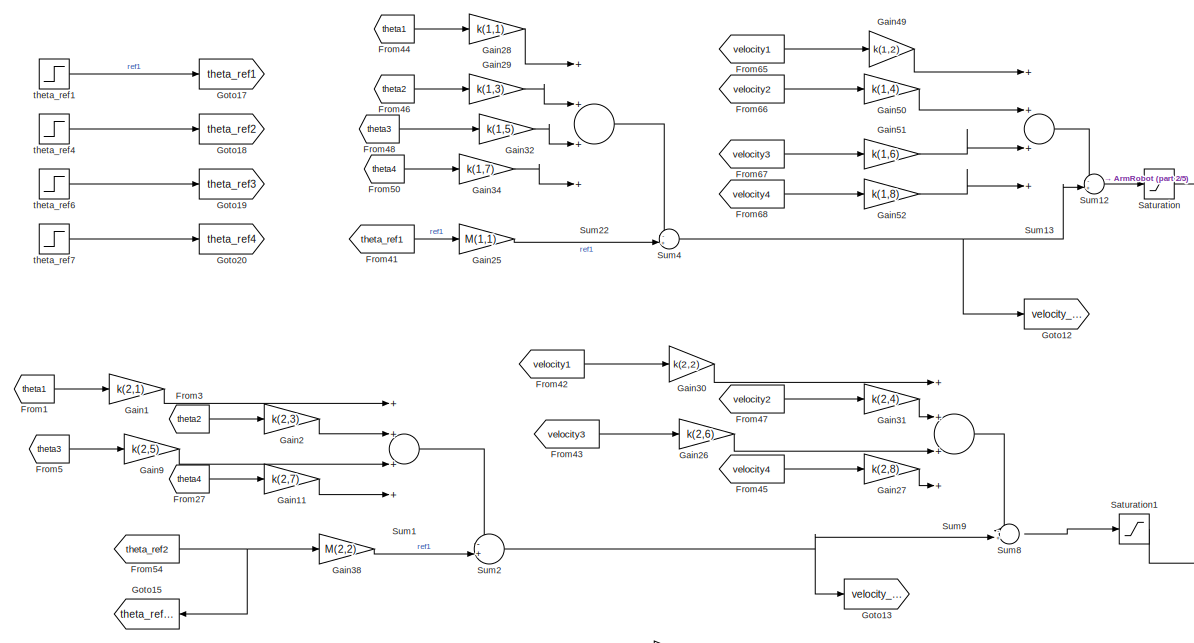
[diagram: root canvas - part 1/5, top left region]
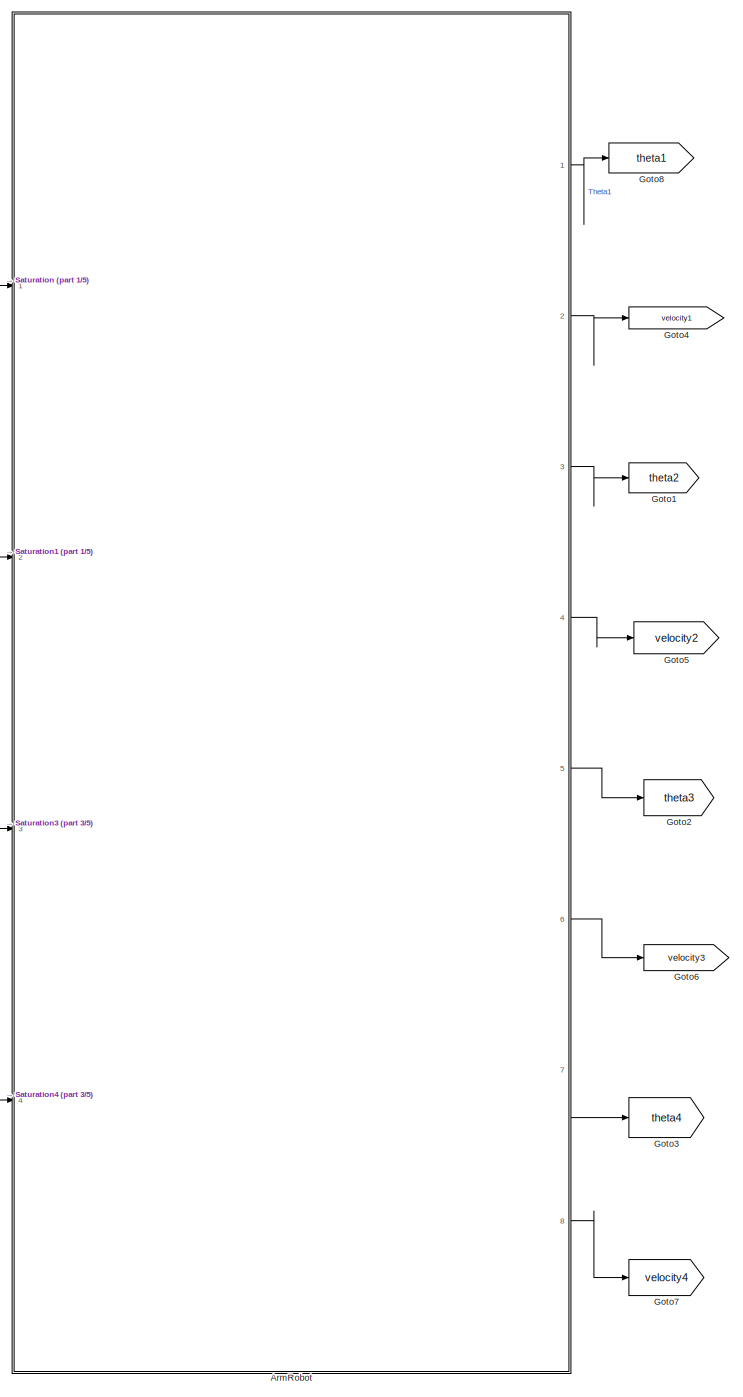
[diagram: root canvas - part 2/5, right side, full height]
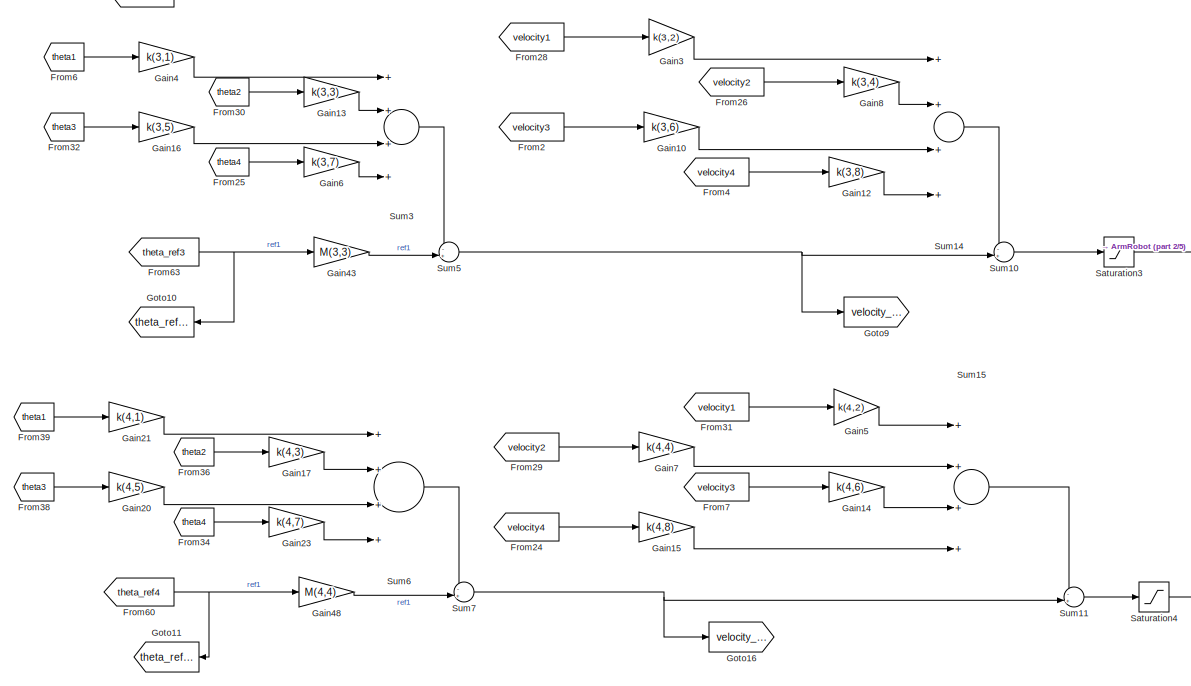
[diagram: root canvas - part 3/5, middle left region]
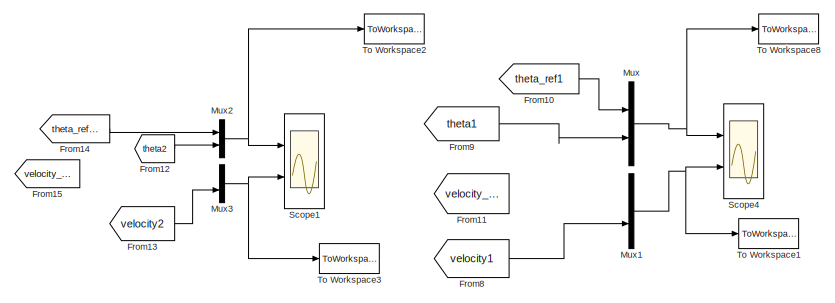
[diagram: root canvas - part 4/5, bottom right region]
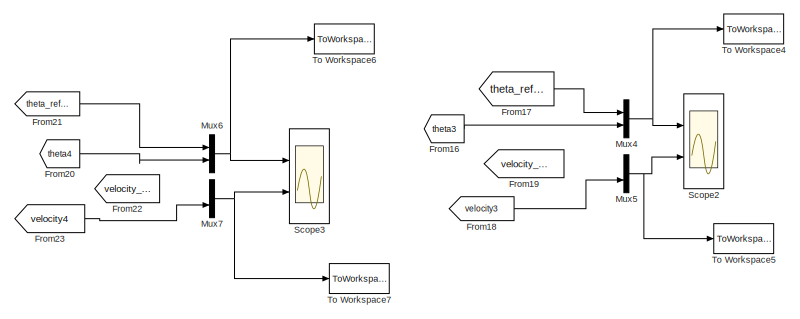
[diagram: root canvas - part 5/5, bottom center region]
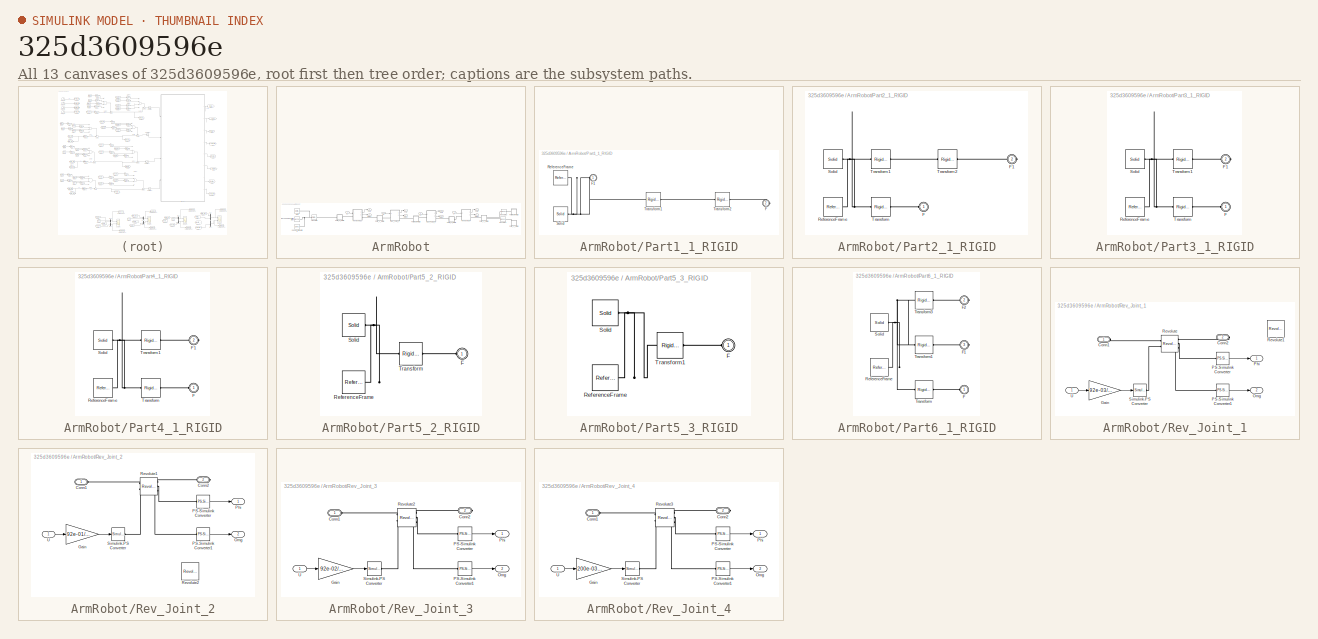
[diagram: thumbnail index - all 13 canvases of the model, root first then tree order]
MODEL slx_325d3609596e
KIND model
CONFIG AbsTol = auto
CONFIG FixedStep = 0.001
CONFIG MaxStep = auto
CONFIG MinStep = auto
CONFIG RelTol = 1e-3
CONFIG SampleTimeConstraint = Unconstrained
CONFIG Solver = FixedStepAuto
CONFIG SolverMode = Auto
CONFIG SolverName = FixedStepAuto
CONFIG StartTime = 0.0
CONFIG StopTime = 20
WORKSPACE source: external: MATLAB File  (data not in archive)
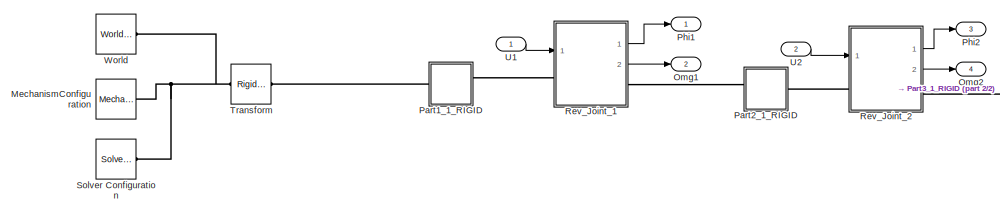
[diagram: ArmRobot - part 1/2, left side, full height]
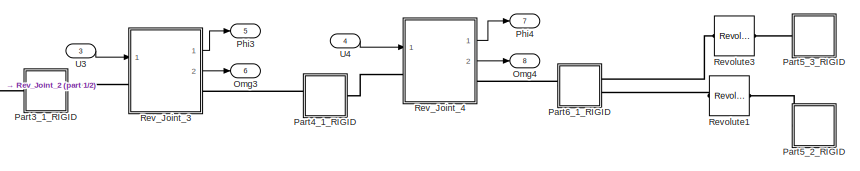
[diagram: ArmRobot - part 2/2, middle right region]
BLOCK [SubSystem] ArmRobot
  Ports = [4, 8]
  RequestExecContextInheritance = off
  Variant = off
BLOCK [Reference] ArmRobot/MechanismConfiguration  REF=sm_lib/Utilities/Mechanism
Configuration
  Ports = [0, 0, 0, 0, 0, 0, 1]
  SourceBlock = sm_lib/Utilities/Mechanism\nConfiguration
  SourceType = Mechanism\nConfiguration
BLOCK [Outport] ArmRobot/Omg1
  IconDisplay = Port number
  Port = 2
BLOCK [Outport] ArmRobot/Omg2
  IconDisplay = Port number
  Port = 4
BLOCK [Outport] ArmRobot/Omg3
  IconDisplay = Port number
  Port = 6
BLOCK [Outport] ArmRobot/Omg4
  IconDisplay = Port number
  Port = 8
BLOCK [SubSystem] ArmRobot/Part1_1_RIGID
  Ports = [0, 0, 0, 0, 0, 1, 1]
  RequestExecContextInheritance = off
  Variant = off
BLOCK [PMIOPort] ArmRobot/Part1_1_RIGID/F
  Port = 2
  Side = Right
BLOCK [PMIOPort] ArmRobot/Part1_1_RIGID/F1
  Port = 1
  Side = Left
BLOCK [Reference] ArmRobot/Part1_1_RIGID/ReferenceFrame  REF=sm_lib/Frames and
Transforms/Reference
Frame
  Ports = [0, 0, 0, 0, 0, 0, 1]
  SourceBlock = sm_lib/Frames and\nTransforms/Reference\nFrame
  SourceType = Reference\nFrame
BLOCK [Reference] ArmRobot/Part1_1_RIGID/Solid  REF=sm_lib/Body Elements/Solid
  Ports = [0, 0, 0, 0, 0, 0, 1]
  SourceBlock = sm_lib/Body Elements/Solid
  SourceType = Solid
BLOCK [Reference] ArmRobot/Part1_1_RIGID/Transform1  REF=sm_lib/Frames and
Transforms/Rigid
Transform
  Ports = [0, 0, 0, 0, 0, 1, 1]
  SourceBlock = sm_lib/Frames and\nTransforms/Rigid\nTransform
  SourceType = Rigid\nTransform
BLOCK [Reference] ArmRobot/Part1_1_RIGID/Transform2  REF=sm_lib/Frames and
Transforms/Rigid
Transform
  Ports = [0, 0, 0, 0, 0, 1, 1]
  SourceBlock = sm_lib/Frames and\nTransforms/Rigid\nTransform
  SourceType = Rigid\nTransform
BLOCK [SubSystem] ArmRobot/Part2_1_RIGID
  Ports = [0, 0, 0, 0, 0, 1, 1]
  RequestExecContextInheritance = off
  Variant = off
BLOCK [PMIOPort] ArmRobot/Part2_1_RIGID/F
  Port = 1
  Side = Left
BLOCK [PMIOPort] ArmRobot/Part2_1_RIGID/F1
  Port = 2
  Side = Right
BLOCK [Reference] ArmRobot/Part2_1_RIGID/ReferenceFrame  REF=sm_lib/Frames and
Transforms/Reference
Frame
  Ports = [0, 0, 0, 0, 0, 0, 1]
  SourceBlock = sm_lib/Frames and\nTransforms/Reference\nFrame
  SourceType = Reference\nFrame
BLOCK [Reference] ArmRobot/Part2_1_RIGID/Solid  REF=sm_lib/Body Elements/Solid
  Ports = [0, 0, 0, 0, 0, 0, 1]
  SourceBlock = sm_lib/Body Elements/Solid
  SourceType = Solid
BLOCK [Reference] ArmRobot/Part2_1_RIGID/Transform  REF=sm_lib/Frames and
Transforms/Rigid
Transform
  Ports = [0, 0, 0, 0, 0, 1, 1]
  SourceBlock = sm_lib/Frames and\nTransforms/Rigid\nTransform
  SourceType = Rigid\nTransform
BLOCK [Reference] ArmRobot/Part2_1_RIGID/Transform1  REF=sm_lib/Frames and
Transforms/Rigid
Transform
  Ports = [0, 0, 0, 0, 0, 1, 1]
  SourceBlock = sm_lib/Frames and\nTransforms/Rigid\nTransform
  SourceType = Rigid\nTransform
BLOCK [Reference] ArmRobot/Part2_1_RIGID/Transform2  REF=sm_lib/Frames and
Transforms/Rigid
Transform
  Ports = [0, 0, 0, 0, 0, 1, 1]
  SourceBlock = sm_lib/Frames and\nTransforms/Rigid\nTransform
  SourceType = Rigid\nTransform
BLOCK [SubSystem] ArmRobot/Part3_1_RIGID
  Ports = [0, 0, 0, 0, 0, 1, 1]
  RequestExecContextInheritance = off
  Variant = off
BLOCK [PMIOPort] ArmRobot/Part3_1_RIGID/F
  Port = 1
  Side = Left
BLOCK [PMIOPort] ArmRobot/Part3_1_RIGID/F1
  Port = 2
  Side = Right
BLOCK [Reference] ArmRobot/Part3_1_RIGID/ReferenceFrame  REF=sm_lib/Frames and
Transforms/Reference
Frame
  Ports = [0, 0, 0, 0, 0, 0, 1]
  SourceBlock = sm_lib/Frames and\nTransforms/Reference\nFrame
  SourceType = Reference\nFrame
BLOCK [Reference] ArmRobot/Part3_1_RIGID/Solid  REF=sm_lib/Body Elements/Solid
  Ports = [0, 0, 0, 0, 0, 0, 1]
  SourceBlock = sm_lib/Body Elements/Solid
  SourceType = Solid
BLOCK [Reference] ArmRobot/Part3_1_RIGID/Transform  REF=sm_lib/Frames and
Transforms/Rigid
Transform
  Ports = [0, 0, 0, 0, 0, 1, 1]
  SourceBlock = sm_lib/Frames and\nTransforms/Rigid\nTransform
  SourceType = Rigid\nTransform
BLOCK [Reference] ArmRobot/Part3_1_RIGID/Transform1  REF=sm_lib/Frames and
Transforms/Rigid
Transform
  Ports = [0, 0, 0, 0, 0, 1, 1]
  SourceBlock = sm_lib/Frames and\nTransforms/Rigid\nTransform
  SourceType = Rigid\nTransform
BLOCK [SubSystem] ArmRobot/Part4_1_RIGID
  Ports = [0, 0, 0, 0, 0, 1, 1]
  RequestExecContextInheritance = off
  Variant = off
BLOCK [PMIOPort] ArmRobot/Part4_1_RIGID/F
  Port = 1
  Side = Left
BLOCK [PMIOPort] ArmRobot/Part4_1_RIGID/F1
  Port = 2
  Side = Right
BLOCK [Reference] ArmRobot/Part4_1_RIGID/ReferenceFrame  REF=sm_lib/Frames and
Transforms/Reference
Frame
  Ports = [0, 0, 0, 0, 0, 0, 1]
  SourceBlock = sm_lib/Frames and\nTransforms/Reference\nFrame
  SourceType = Reference\nFrame
BLOCK [Reference] ArmRobot/Part4_1_RIGID/Solid  REF=sm_lib/Body Elements/Solid
  Ports = [0, 0, 0, 0, 0, 0, 1]
  SourceBlock = sm_lib/Body Elements/Solid
  SourceType = Solid
BLOCK [Reference] ArmRobot/Part4_1_RIGID/Transform  REF=sm_lib/Frames and
Transforms/Rigid
Transform
  Ports = [0, 0, 0, 0, 0, 1, 1]
  SourceBlock = sm_lib/Frames and\nTransforms/Rigid\nTransform
  SourceType = Rigid\nTransform
BLOCK [Reference] ArmRobot/Part4_1_RIGID/Transform1  REF=sm_lib/Frames and
Transforms/Rigid
Transform
  Ports = [0, 0, 0, 0, 0, 1, 1]
  SourceBlock = sm_lib/Frames and\nTransforms/Rigid\nTransform
  SourceType = Rigid\nTransform
BLOCK [SubSystem] ArmRobot/Part5_2_RIGID
  Ports = [0, 0, 0, 0, 0, 1]
  RequestExecContextInheritance = off
  Variant = off
BLOCK [PMIOPort] ArmRobot/Part5_2_RIGID/F
  Port = 1
  Side = Left
BLOCK [Reference] ArmRobot/Part5_2_RIGID/ReferenceFrame  REF=sm_lib/Frames and
Transforms/Reference
Frame
  Ports = [0, 0, 0, 0, 0, 0, 1]
  SourceBlock = sm_lib/Frames and\nTransforms/Reference\nFrame
  SourceType = Reference\nFrame
BLOCK [Reference] ArmRobot/Part5_2_RIGID/Solid  REF=sm_lib/Body Elements/Solid
  Ports = [0, 0, 0, 0, 0, 0, 1]
  SourceBlock = sm_lib/Body Elements/Solid
  SourceType = Solid
BLOCK [Reference] ArmRobot/Part5_2_RIGID/Transform  REF=sm_lib/Frames and
Transforms/Rigid
Transform
  Ports = [0, 0, 0, 0, 0, 1, 1]
  SourceBlock = sm_lib/Frames and\nTransforms/Rigid\nTransform
  SourceType = Rigid\nTransform
BLOCK [SubSystem] ArmRobot/Part5_3_RIGID
  Ports = [0, 0, 0, 0, 0, 1]
  RequestExecContextInheritance = off
  Variant = off
BLOCK [PMIOPort] ArmRobot/Part5_3_RIGID/F
  Port = 1
  Side = Left
BLOCK [Reference] ArmRobot/Part5_3_RIGID/ReferenceFrame  REF=sm_lib/Frames and
Transforms/Reference
Frame
  Ports = [0, 0, 0, 0, 0, 0, 1]
  SourceBlock = sm_lib/Frames and\nTransforms/Reference\nFrame
  SourceType = Reference\nFrame
BLOCK [Reference] ArmRobot/Part5_3_RIGID/Solid  REF=sm_lib/Body Elements/Solid
  Ports = [0, 0, 0, 0, 0, 0, 1]
  SourceBlock = sm_lib/Body Elements/Solid
  SourceType = Solid
BLOCK [Reference] ArmRobot/Part5_3_RIGID/Transform1  REF=sm_lib/Frames and
Transforms/Rigid
Transform
  Ports = [0, 0, 0, 0, 0, 1, 1]
  SourceBlock = sm_lib/Frames and\nTransforms/Rigid\nTransform
  SourceType = Rigid\nTransform
BLOCK [SubSystem] ArmRobot/Part6_1_RIGID
  Ports = [0, 0, 0, 0, 0, 1, 2]
  RequestExecContextInheritance = off
  Variant = off
BLOCK [PMIOPort] ArmRobot/Part6_1_RIGID/F
  Port = 1
  Side = Left
BLOCK [PMIOPort] ArmRobot/Part6_1_RIGID/F1
  Port = 3
  Side = Right
BLOCK [PMIOPort] ArmRobot/Part6_1_RIGID/F2
  Port = 2
  Side = Right
BLOCK [Reference] ArmRobot/Part6_1_RIGID/ReferenceFrame  REF=sm_lib/Frames and
Transforms/Reference
Frame
  Ports = [0, 0, 0, 0, 0, 0, 1]
  SourceBlock = sm_lib/Frames and\nTransforms/Reference\nFrame
  SourceType = Reference\nFrame
BLOCK [Reference] ArmRobot/Part6_1_RIGID/Solid  REF=sm_lib/Body Elements/Solid
  Ports = [0, 0, 0, 0, 0, 0, 1]
  SourceBlock = sm_lib/Body Elements/Solid
  SourceType = Solid
BLOCK [Reference] ArmRobot/Part6_1_RIGID/Transform  REF=sm_lib/Frames and
Transforms/Rigid
Transform
  Ports = [0, 0, 0, 0, 0, 1, 1]
  SourceBlock = sm_lib/Frames and\nTransforms/Rigid\nTransform
  SourceType = Rigid\nTransform
BLOCK [Reference] ArmRobot/Part6_1_RIGID/Transform1  REF=sm_lib/Frames and
Transforms/Rigid
Transform
  Ports = [0, 0, 0, 0, 0, 1, 1]
  SourceBlock = sm_lib/Frames and\nTransforms/Rigid\nTransform
  SourceType = Rigid\nTransform
BLOCK [Reference] ArmRobot/Part6_1_RIGID/Transform3  REF=sm_lib/Frames and
Transforms/Rigid
Transform
  Ports = [0, 0, 0, 0, 0, 1, 1]
  SourceBlock = sm_lib/Frames and\nTransforms/Rigid\nTransform
  SourceType = Rigid\nTransform
BLOCK [Outport] ArmRobot/Phi1
  IconDisplay = Port number
BLOCK [Outport] ArmRobot/Phi2
  IconDisplay = Port number
  Port = 3
BLOCK [Outport] ArmRobot/Phi3
  IconDisplay = Port number
  Port = 5
BLOCK [Outport] ArmRobot/Phi4
  IconDisplay = Port number
  Port = 7
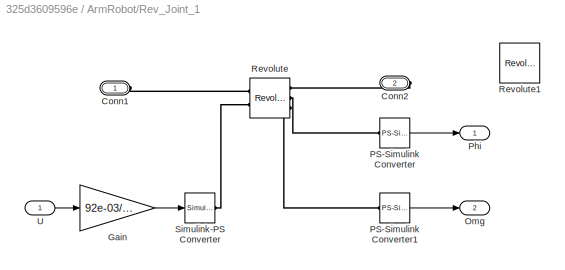
BLOCK [SubSystem] ArmRobot/Rev_Joint_1
  Ports = [1, 2, 0, 0, 0, 1, 1]
  RequestExecContextInheritance = off
  Variant = off
BLOCK [PMIOPort] ArmRobot/Rev_Joint_1/Conn1
  Port = 1
  Side = Left
BLOCK [PMIOPort] ArmRobot/Rev_Joint_1/Conn2
  Port = 2
  Side = Right
BLOCK [Gain] ArmRobot/Rev_Joint_1/Gain
  Gain = 92e-03/12
  OutDataTypeStr = Inherit: Inherit via internal rule
  ParamDataTypeStr = Inherit: Inherit via internal rule
  SaturateOnIntegerOverflow = off
BLOCK [Outport] ArmRobot/Rev_Joint_1/Omg
  IconDisplay = Port number
  Port = 2
BLOCK [Reference] ArmRobot/Rev_Joint_1/PS-Simulink Converter  REF=nesl_utility/PS-Simulink
Converter
  Ports = [0, 1, 0, 0, 0, 1]
  SourceBlock = nesl_utility/PS-Simulink\nConverter
  SourceType = PS-Simulink\nConverter
BLOCK [Reference] ArmRobot/Rev_Joint_1/PS-Simulink Converter1  REF=nesl_utility/PS-Simulink
Converter
  Ports = [0, 1, 0, 0, 0, 1]
  SourceBlock = nesl_utility/PS-Simulink\nConverter
  SourceType = PS-Simulink\nConverter
BLOCK [Outport] ArmRobot/Rev_Joint_1/Phi
  IconDisplay = Port number
BLOCK [Reference] ArmRobot/Rev_Joint_1/Revolute  REF=sm_lib/Joints/Revolute Joint
  Ports = [0, 0, 0, 0, 0, 2, 3]
  SourceBlock = sm_lib/Joints/Revolute Joint
  SourceType = Revolute Joint
BLOCK [Reference] ArmRobot/Rev_Joint_1/Revolute1  REF=sm_lib/Joints/Revolute Joint
  Commented = on
  Ports = [0, 0, 0, 0, 0, 2, 3]
  SourceBlock = sm_lib/Joints/Revolute Joint
  SourceType = Revolute Joint
BLOCK [Reference] ArmRobot/Rev_Joint_1/Simulink-PS Converter  REF=nesl_utility/Simulink-PS
Converter
  Ports = [1, 0, 0, 0, 0, 0, 1]
  SourceBlock = nesl_utility/Simulink-PS\nConverter
  SourceType = Simulink-PS\nConverter
BLOCK [Inport] ArmRobot/Rev_Joint_1/U
  IconDisplay = Port number
BLOCK [SubSystem] ArmRobot/Rev_Joint_2
  Ports = [1, 2, 0, 0, 0, 1, 1]
  RequestExecContextInheritance = off
  Variant = off
BLOCK [PMIOPort] ArmRobot/Rev_Joint_2/Conn1
  Port = 1
  Side = Left
BLOCK [PMIOPort] ArmRobot/Rev_Joint_2/Conn2
  Port = 2
  Side = Right
BLOCK [Gain] ArmRobot/Rev_Joint_2/Gain
  Gain = 92e-01/12
  OutDataTypeStr = Inherit: Inherit via internal rule
  ParamDataTypeStr = Inherit: Inherit via internal rule
  SaturateOnIntegerOverflow = off
BLOCK [Outport] ArmRobot/Rev_Joint_2/Omg
  IconDisplay = Port number
  Port = 2
BLOCK [Reference] ArmRobot/Rev_Joint_2/PS-Simulink Converter  REF=nesl_utility/PS-Simulink
Converter
  Ports = [0, 1, 0, 0, 0, 1]
  SourceBlock = nesl_utility/PS-Simulink\nConverter
  SourceType = PS-Simulink\nConverter
BLOCK [Reference] ArmRobot/Rev_Joint_2/PS-Simulink Converter1  REF=nesl_utility/PS-Simulink
Converter
  Ports = [0, 1, 0, 0, 0, 1]
  SourceBlock = nesl_utility/PS-Simulink\nConverter
  SourceType = PS-Simulink\nConverter
BLOCK [Outport] ArmRobot/Rev_Joint_2/Phi
  IconDisplay = Port number
BLOCK [Reference] ArmRobot/Rev_Joint_2/Revolute1  REF=sm_lib/Joints/Revolute Joint
  Ports = [0, 0, 0, 0, 0, 2, 3]
  SourceBlock = sm_lib/Joints/Revolute Joint
  SourceType = Revolute Joint
BLOCK [Reference] ArmRobot/Rev_Joint_2/Revolute2  REF=sm_lib/Joints/Revolute Joint
  Commented = on
  Ports = [0, 0, 0, 0, 0, 2, 3]
  SourceBlock = sm_lib/Joints/Revolute Joint
  SourceType = Revolute Joint
BLOCK [Reference] ArmRobot/Rev_Joint_2/Simulink-PS Converter  REF=nesl_utility/Simulink-PS
Converter
  Ports = [1, 0, 0, 0, 0, 0, 1]
  SourceBlock = nesl_utility/Simulink-PS\nConverter
  SourceType = Simulink-PS\nConverter
BLOCK [Inport] ArmRobot/Rev_Joint_2/U
  IconDisplay = Port number
BLOCK [SubSystem] ArmRobot/Rev_Joint_3
  Ports = [1, 2, 0, 0, 0, 1, 1]
  RequestExecContextInheritance = off
  Variant = off
BLOCK [PMIOPort] ArmRobot/Rev_Joint_3/Conn1
  Port = 1
  Side = Left
BLOCK [PMIOPort] ArmRobot/Rev_Joint_3/Conn2
  Port = 2
  Side = Right
BLOCK [Gain] ArmRobot/Rev_Joint_3/Gain
  Gain = 92e-02/12
  OutDataTypeStr = Inherit: Inherit via internal rule
  ParamDataTypeStr = Inherit: Inherit via internal rule
  SaturateOnIntegerOverflow = off
BLOCK [Outport] ArmRobot/Rev_Joint_3/Omg
  IconDisplay = Port number
  Port = 2
BLOCK [Reference] ArmRobot/Rev_Joint_3/PS-Simulink Converter  REF=nesl_utility/PS-Simulink
Converter
  Ports = [0, 1, 0, 0, 0, 1]
  SourceBlock = nesl_utility/PS-Simulink\nConverter
  SourceType = PS-Simulink\nConverter
BLOCK [Reference] ArmRobot/Rev_Joint_3/PS-Simulink Converter1  REF=nesl_utility/PS-Simulink
Converter
  Ports = [0, 1, 0, 0, 0, 1]
  SourceBlock = nesl_utility/PS-Simulink\nConverter
  SourceType = PS-Simulink\nConverter
BLOCK [Outport] ArmRobot/Rev_Joint_3/Phi
  IconDisplay = Port number
BLOCK [Reference] ArmRobot/Rev_Joint_3/Revolute2  REF=sm_lib/Joints/Revolute Joint
  Ports = [0, 0, 0, 0, 0, 2, 3]
  SourceBlock = sm_lib/Joints/Revolute Joint
  SourceType = Revolute Joint
BLOCK [Reference] ArmRobot/Rev_Joint_3/Simulink-PS Converter  REF=nesl_utility/Simulink-PS
Converter
  Ports = [1, 0, 0, 0, 0, 0, 1]
  SourceBlock = nesl_utility/Simulink-PS\nConverter
  SourceType = Simulink-PS\nConverter
BLOCK [Inport] ArmRobot/Rev_Joint_3/U
  IconDisplay = Port number
BLOCK [SubSystem] ArmRobot/Rev_Joint_4
  Ports = [1, 2, 0, 0, 0, 1, 1]
  RequestExecContextInheritance = off
  Variant = off
BLOCK [PMIOPort] ArmRobot/Rev_Joint_4/Conn1
  Port = 1
  Side = Left
BLOCK [PMIOPort] ArmRobot/Rev_Joint_4/Conn2
  Port = 2
  Side = Right
BLOCK [Gain] ArmRobot/Rev_Joint_4/Gain
  Gain = 200e-03/12
  OutDataTypeStr = Inherit: Inherit via internal rule
  ParamDataTypeStr = Inherit: Inherit via internal rule
  SaturateOnIntegerOverflow = off
BLOCK [Outport] ArmRobot/Rev_Joint_4/Omg
  IconDisplay = Port number
  Port = 2
BLOCK [Reference] ArmRobot/Rev_Joint_4/PS-Simulink Converter  REF=nesl_utility/PS-Simulink
Converter
  Ports = [0, 1, 0, 0, 0, 1]
  SourceBlock = nesl_utility/PS-Simulink\nConverter
  SourceType = PS-Simulink\nConverter
BLOCK [Reference] ArmRobot/Rev_Joint_4/PS-Simulink Converter1  REF=nesl_utility/PS-Simulink
Converter
  Ports = [0, 1, 0, 0, 0, 1]
  SourceBlock = nesl_utility/PS-Simulink\nConverter
  SourceType = PS-Simulink\nConverter
BLOCK [Outport] ArmRobot/Rev_Joint_4/Phi
  IconDisplay = Port number
BLOCK [Reference] ArmRobot/Rev_Joint_4/Revolute3  REF=sm_lib/Joints/Revolute Joint
  Ports = [0, 0, 0, 0, 0, 2, 3]
  SourceBlock = sm_lib/Joints/Revolute Joint
  SourceType = Revolute Joint
BLOCK [Reference] ArmRobot/Rev_Joint_4/Simulink-PS Converter  REF=nesl_utility/Simulink-PS
Converter
  Ports = [1, 0, 0, 0, 0, 0, 1]
  SourceBlock = nesl_utility/Simulink-PS\nConverter
  SourceType = Simulink-PS\nConverter
BLOCK [Inport] ArmRobot/Rev_Joint_4/U
  IconDisplay = Port number
BLOCK [Reference] ArmRobot/Revolute1  REF=sm_lib/Joints/Revolute Joint
  Ports = [0, 0, 0, 0, 0, 1, 1]
  SourceBlock = sm_lib/Joints/Revolute Joint
  SourceType = Revolute Joint
BLOCK [Reference] ArmRobot/Revolute3  REF=sm_lib/Joints/Revolute Joint
  Ports = [0, 0, 0, 0, 0, 1, 1]
  SourceBlock = sm_lib/Joints/Revolute Joint
  SourceType = Revolute Joint
BLOCK [Reference] ArmRobot/Solver Configuration  REF=nesl_utility/Solver
Configuration
  Ports = [0, 0, 0, 0, 0, 0, 1]
  SourceBlock = nesl_utility/Solver\nConfiguration
  SourceType = Solver\nConfiguration
BLOCK [Reference] ArmRobot/Transform  REF=sm_lib/Frames and
Transforms/Rigid
Transform
  Ports = [0, 0, 0, 0, 0, 1, 1]
  SourceBlock = sm_lib/Frames and\nTransforms/Rigid\nTransform
  SourceType = Rigid\nTransform
BLOCK [Inport] ArmRobot/U1
  IconDisplay = Port number
BLOCK [Inport] ArmRobot/U2
  IconDisplay = Port number
  Port = 2
BLOCK [Inport] ArmRobot/U3
  IconDisplay = Port number
  Port = 3
BLOCK [Inport] ArmRobot/U4
  IconDisplay = Port number
  Port = 4
BLOCK [Reference] ArmRobot/World  REF=sm_lib/Frames and
Transforms/World Frame
  Ports = [0, 0, 0, 0, 0, 0, 1]
  SourceBlock = sm_lib/Frames and\nTransforms/World Frame
  SourceType = World Frame
BLOCK [From] From1
  GotoTag = theta1
BLOCK [From] From10
  GotoTag = theta_ref1
BLOCK [From] From11
  GotoTag = velocity_ref1
BLOCK [From] From12
  GotoTag = theta2
BLOCK [From] From13
  GotoTag = velocity2
BLOCK [From] From14
  GotoTag = theta_ref_2
BLOCK [From] From15
  GotoTag = velocity_ref2
BLOCK [From] From16
  GotoTag = theta3
BLOCK [From] From17
  GotoTag = theta_ref_3
BLOCK [From] From18
  GotoTag = velocity3
BLOCK [From] From19
  GotoTag = velocity_ref3
BLOCK [From] From2
  GotoTag = velocity3
BLOCK [From] From20
  GotoTag = theta4
BLOCK [From] From21
  GotoTag = theta_ref_4
BLOCK [From] From22
  GotoTag = velocity_ref4
BLOCK [From] From23
  GotoTag = velocity4
BLOCK [From] From24
  GotoTag = velocity4
BLOCK [From] From25
  GotoTag = theta4
BLOCK [From] From26
  GotoTag = velocity2
BLOCK [From] From27
  GotoTag = theta4
BLOCK [From] From28
  GotoTag = velocity1
BLOCK [From] From29
  GotoTag = velocity2
BLOCK [From] From3
  GotoTag = theta2
BLOCK [From] From30
  GotoTag = theta2
BLOCK [From] From31
  GotoTag = velocity1
BLOCK [From] From32
  GotoTag = theta3
BLOCK [From] From34
  GotoTag = theta4
BLOCK [From] From36
  GotoTag = theta2
BLOCK [From] From38
  GotoTag = theta3
BLOCK [From] From39
  GotoTag = theta1
BLOCK [From] From4
  GotoTag = velocity4
BLOCK [From] From41
  GotoTag = theta_ref1
BLOCK [From] From42
  GotoTag = velocity1
BLOCK [From] From43
  GotoTag = velocity3
BLOCK [From] From44
  GotoTag = theta1
BLOCK [From] From45
  GotoTag = velocity4
BLOCK [From] From46
  GotoTag = theta2
BLOCK [From] From47
  GotoTag = velocity2
BLOCK [From] From48
  GotoTag = theta3
BLOCK [From] From5
  GotoTag = theta3
BLOCK [From] From50
  GotoTag = theta4
BLOCK [From] From54
  GotoTag = theta_ref2
BLOCK [From] From6
  GotoTag = theta1
BLOCK [From] From60
  GotoTag = theta_ref4
BLOCK [From] From63
  GotoTag = theta_ref3
BLOCK [From] From65
  GotoTag = velocity1
BLOCK [From] From66
  GotoTag = velocity2
BLOCK [From] From67
  GotoTag = velocity3
BLOCK [From] From68
  GotoTag = velocity4
BLOCK [From] From7
  GotoTag = velocity3
BLOCK [From] From8
  GotoTag = velocity1
BLOCK [From] From9
  GotoTag = theta1
BLOCK [Gain] Gain1
  Gain = k(2,1)
  OutDataTypeStr = Inherit: Inherit via internal rule
  ParamDataTypeStr = Inherit: Inherit via internal rule
  SaturateOnIntegerOverflow = off
BLOCK [Gain] Gain10
  Gain = k(3,6)
  OutDataTypeStr = Inherit: Inherit via internal rule
  ParamDataTypeStr = Inherit: Inherit via internal rule
  SaturateOnIntegerOverflow = off
BLOCK [Gain] Gain11
  Gain = k(2,7)
  OutDataTypeStr = Inherit: Inherit via internal rule
  ParamDataTypeStr = Inherit: Inherit via internal rule
  SaturateOnIntegerOverflow = off
BLOCK [Gain] Gain12
  Gain = k(3,8)
  OutDataTypeStr = Inherit: Inherit via internal rule
  ParamDataTypeStr = Inherit: Inherit via internal rule
  SaturateOnIntegerOverflow = off
BLOCK [Gain] Gain13
  Gain = k(3,3)
  OutDataTypeStr = Inherit: Inherit via internal rule
  ParamDataTypeStr = Inherit: Inherit via internal rule
  SaturateOnIntegerOverflow = off
BLOCK [Gain] Gain14
  Gain = k(4,6)
  OutDataTypeStr = Inherit: Inherit via internal rule
  ParamDataTypeStr = Inherit: Inherit via internal rule
  SaturateOnIntegerOverflow = off
BLOCK [Gain] Gain15
  Gain = k(4,8)
  OutDataTypeStr = Inherit: Inherit via internal rule
  ParamDataTypeStr = Inherit: Inherit via internal rule
  SaturateOnIntegerOverflow = off
BLOCK [Gain] Gain16
  Gain = k(3,5)
  OutDataTypeStr = Inherit: Inherit via internal rule
  ParamDataTypeStr = Inherit: Inherit via internal rule
  SaturateOnIntegerOverflow = off
BLOCK [Gain] Gain17
  Gain = k(4,3)
  OutDataTypeStr = Inherit: Inherit via internal rule
  ParamDataTypeStr = Inherit: Inherit via internal rule
  SaturateOnIntegerOverflow = off
BLOCK [Gain] Gain2
  Gain = k(2,3)
  OutDataTypeStr = Inherit: Inherit via internal rule
  ParamDataTypeStr = Inherit: Inherit via internal rule
  SaturateOnIntegerOverflow = off
BLOCK [Gain] Gain20
  Gain = k(4,5)
  OutDataTypeStr = Inherit: Inherit via internal rule
  ParamDataTypeStr = Inherit: Inherit via internal rule
  SaturateOnIntegerOverflow = off
BLOCK [Gain] Gain21
  Gain = k(4,1)
  OutDataTypeStr = Inherit: Inherit via internal rule
  ParamDataTypeStr = Inherit: Inherit via internal rule
  SaturateOnIntegerOverflow = off
BLOCK [Gain] Gain23
  Gain = k(4,7)
  OutDataTypeStr = Inherit: Inherit via internal rule
  ParamDataTypeStr = Inherit: Inherit via internal rule
  SaturateOnIntegerOverflow = off
BLOCK [Gain] Gain25
  Gain = M(1,1)
  OutDataTypeStr = Inherit: Inherit via internal rule
  ParamDataTypeStr = Inherit: Inherit via internal rule
  SaturateOnIntegerOverflow = off
BLOCK [Gain] Gain26
  Gain = k(2,6)
  OutDataTypeStr = Inherit: Inherit via internal rule
  ParamDataTypeStr = Inherit: Inherit via internal rule
  SaturateOnIntegerOverflow = off
BLOCK [Gain] Gain27
  Gain = k(2,8)
  OutDataTypeStr = Inherit: Inherit via internal rule
  ParamDataTypeStr = Inherit: Inherit via internal rule
  SaturateOnIntegerOverflow = off
BLOCK [Gain] Gain28
  Gain = k(1,1)
  OutDataTypeStr = Inherit: Inherit via internal rule
  ParamDataTypeStr = Inherit: Inherit via internal rule
  SaturateOnIntegerOverflow = off
BLOCK [Gain] Gain29
  Gain = k(1,3)
  OutDataTypeStr = Inherit: Inherit via internal rule
  ParamDataTypeStr = Inherit: Inherit via internal rule
  SaturateOnIntegerOverflow = off
BLOCK [Gain] Gain3
  Gain = k(3,2)
  OutDataTypeStr = Inherit: Inherit via internal rule
  ParamDataTypeStr = Inherit: Inherit via internal rule
  SaturateOnIntegerOverflow = off
BLOCK [Gain] Gain30
  Gain = k(2,2)
  OutDataTypeStr = Inherit: Inherit via internal rule
  ParamDataTypeStr = Inherit: Inherit via internal rule
  SaturateOnIntegerOverflow = off
BLOCK [Gain] Gain31
  Gain = k(2,4)
  OutDataTypeStr = Inherit: Inherit via internal rule
  ParamDataTypeStr = Inherit: Inherit via internal rule
  SaturateOnIntegerOverflow = off
BLOCK [Gain] Gain32
  Gain = k(1,5)
  OutDataTypeStr = Inherit: Inherit via internal rule
  ParamDataTypeStr = Inherit: Inherit via internal rule
  SaturateOnIntegerOverflow = off
BLOCK [Gain] Gain34
  Gain = k(1,7)
  OutDataTypeStr = Inherit: Inherit via internal rule
  ParamDataTypeStr = Inherit: Inherit via internal rule
  SaturateOnIntegerOverflow = off
BLOCK [Gain] Gain38
  Gain = M(2,2)
  OutDataTypeStr = Inherit: Inherit via internal rule
  ParamDataTypeStr = Inherit: Inherit via internal rule
  SaturateOnIntegerOverflow = off
BLOCK [Gain] Gain4
  Gain = k(3,1)
  OutDataTypeStr = Inherit: Inherit via internal rule
  ParamDataTypeStr = Inherit: Inherit via internal rule
  SaturateOnIntegerOverflow = off
BLOCK [Gain] Gain43
  Gain = M(3,3)
  OutDataTypeStr = Inherit: Inherit via internal rule
  ParamDataTypeStr = Inherit: Inherit via internal rule
  SaturateOnIntegerOverflow = off
BLOCK [Gain] Gain48
  Gain = M(4,4)
  OutDataTypeStr = Inherit: Inherit via internal rule
  ParamDataTypeStr = Inherit: Inherit via internal rule
  SaturateOnIntegerOverflow = off
BLOCK [Gain] Gain49
  Gain = k(1,2)
  OutDataTypeStr = Inherit: Inherit via internal rule
  ParamDataTypeStr = Inherit: Inherit via internal rule
  SaturateOnIntegerOverflow = off
BLOCK [Gain] Gain5
  Gain = k(4,2)
  OutDataTypeStr = Inherit: Inherit via internal rule
  ParamDataTypeStr = Inherit: Inherit via internal rule
  SaturateOnIntegerOverflow = off
BLOCK [Gain] Gain50
  Gain = k(1,4)
  OutDataTypeStr = Inherit: Inherit via internal rule
  ParamDataTypeStr = Inherit: Inherit via internal rule
  SaturateOnIntegerOverflow = off
BLOCK [Gain] Gain51
  Gain = k(1,6)
  OutDataTypeStr = Inherit: Inherit via internal rule
  ParamDataTypeStr = Inherit: Inherit via internal rule
  SaturateOnIntegerOverflow = off
BLOCK [Gain] Gain52
  Gain = k(1,8)
  OutDataTypeStr = Inherit: Inherit via internal rule
  ParamDataTypeStr = Inherit: Inherit via internal rule
  SaturateOnIntegerOverflow = off
BLOCK [Gain] Gain6
  Gain = k(3,7)
  OutDataTypeStr = Inherit: Inherit via internal rule
  ParamDataTypeStr = Inherit: Inherit via internal rule
  SaturateOnIntegerOverflow = off
BLOCK [Gain] Gain7
  Gain = k(4,4)
  OutDataTypeStr = Inherit: Inherit via internal rule
  ParamDataTypeStr = Inherit: Inherit via internal rule
  SaturateOnIntegerOverflow = off
BLOCK [Gain] Gain8
  Gain = k(3,4)
  OutDataTypeStr = Inherit: Inherit via internal rule
  ParamDataTypeStr = Inherit: Inherit via internal rule
  SaturateOnIntegerOverflow = off
BLOCK [Gain] Gain9
  Gain = k(2,5)
  OutDataTypeStr = Inherit: Inherit via internal rule
  ParamDataTypeStr = Inherit: Inherit via internal rule
  SaturateOnIntegerOverflow = off
BLOCK [Goto] Goto1
  GotoTag = theta2
BLOCK [Goto] Goto10
  GotoTag = theta_ref_3
BLOCK [Goto] Goto11
  GotoTag = theta_ref_4
BLOCK [Goto] Goto12
  GotoTag = velocity_ref1
BLOCK [Goto] Goto13
  GotoTag = velocity_ref2
BLOCK [Goto] Goto15
  GotoTag = theta_ref_2
BLOCK [Goto] Goto16
  GotoTag = velocity_ref4
BLOCK [Goto] Goto17
  GotoTag = theta_ref1
BLOCK [Goto] Goto18
  GotoTag = theta_ref2
BLOCK [Goto] Goto19
  GotoTag = theta_ref3
BLOCK [Goto] Goto2
  GotoTag = theta3
BLOCK [Goto] Goto20
  GotoTag = theta_ref4
BLOCK [Goto] Goto3
  GotoTag = theta4
BLOCK [Goto] Goto4
  GotoTag = velocity1
BLOCK [Goto] Goto5
  GotoTag = velocity2
BLOCK [Goto] Goto6
  GotoTag = velocity3
BLOCK [Goto] Goto7
  GotoTag = velocity4
BLOCK [Goto] Goto8
  GotoTag = theta1
BLOCK [Goto] Goto9
  GotoTag = velocity_ref3
BLOCK [Mux] Mux
  DisplayOption = bar
  Inputs = 2
  Ports = [2, 1]
BLOCK [Mux] Mux1
  DisplayOption = bar
  Inputs = 2
  Ports = [2, 1]
BLOCK [Mux] Mux2
  DisplayOption = bar
  Inputs = 2
  Ports = [2, 1]
BLOCK [Mux] Mux3
  DisplayOption = bar
  Inputs = 2
  Ports = [2, 1]
BLOCK [Mux] Mux4
  DisplayOption = bar
  Inputs = 2
  Ports = [2, 1]
BLOCK [Mux] Mux5
  DisplayOption = bar
  Inputs = 2
  Ports = [2, 1]
BLOCK [Mux] Mux6
  DisplayOption = bar
  Inputs = 2
  Ports = [2, 1]
BLOCK [Mux] Mux7
  DisplayOption = bar
  Inputs = 2
  Ports = [2, 1]
BLOCK [Saturate] Saturation
  InputPortMap = u0
  LowerLimit = -12
  Ports = [1, 1]
  UpperLimit = 12
BLOCK [Saturate] Saturation1
  InputPortMap = u0
  LowerLimit = -12
  Ports = [1, 1]
  UpperLimit = 12
BLOCK [Saturate] Saturation3
  InputPortMap = u0
  LowerLimit = -12
  Ports = [1, 1]
  UpperLimit = 12
BLOCK [Saturate] Saturation4
  InputPortMap = u0
  LowerLimit = -12
  Ports = [1, 1]
  UpperLimit = 12
BLOCK [Scope] Scope1
  NumInputPorts = 2
  Ports = [2]
  ScopeSpecificationString = Simulink.scopes.TimeScopeBlockCfg('CurrentConfiguration', extmgr.ConfigurationSet(extmgr.Configuration('Core','General UI',true),extmgr.Configuration('Core','Source UI',true),extmgr.Configuration('Sources','WiredSimulink',true,'DataLoggingVariableName','ScopeData1'),extmgr.Configuration('Visuals','Time Domain',true,'SerializedDisplays',{struct('MinYLimReal','-0.19765','MaxYLimReal','1.76729','YLab...<+2110ch>
BLOCK [Scope] Scope2
  NumInputPorts = 2
  Ports = [2]
  ScopeSpecificationString = Simulink.scopes.TimeScopeBlockCfg('CurrentConfiguration', extmgr.ConfigurationSet(extmgr.Configuration('Core','General UI',true),extmgr.Configuration('Core','Source UI',true),extmgr.Configuration('Sources','WiredSimulink',true,'DataLoggingVariableName','ScopeData2'),extmgr.Configuration('Visuals','Time Domain',true,'SerializedDisplays',{struct('MinYLimReal','-0.20227','MaxYLimReal','1.82039','YLab...<+2107ch>
BLOCK [Scope] Scope3
  NumInputPorts = 2
  Ports = [2]
  ScopeSpecificationString = Simulink.scopes.TimeScopeBlockCfg('CurrentConfiguration', extmgr.ConfigurationSet(extmgr.Configuration('Core','General UI',true),extmgr.Configuration('Core','Source UI',true),extmgr.Configuration('Sources','WiredSimulink',true,'DataLoggingVariableName','ScopeData3'),extmgr.Configuration('Visuals','Time Domain',true,'SerializedDisplays',{struct('MinYLimReal','-0.3927','MaxYLimReal','3.53429','YLabe...<+2105ch>
BLOCK [Scope] Scope4
  NumInputPorts = 2
  Ports = [2]
  ScopeSpecificationString = Simulink.scopes.TimeScopeBlockCfg('CurrentConfiguration', extmgr.ConfigurationSet(extmgr.Configuration('Core','General UI',true),extmgr.Configuration('Core','Source UI',true),extmgr.Configuration('Sources','WiredSimulink',true,'DataLoggingVariableName','ScopeData1'),extmgr.Configuration('Visuals','Time Domain',true,'SerializedDisplays',{struct('MinYLimReal','-0.19635','MaxYLimReal','1.76715','YLab...<+2104ch>
BLOCK [Sum] Sum1
  InputSameDT = off
  Inputs = ++++|
  OutDataTypeStr = Inherit: Inherit via internal rule
  Ports = [4, 1]
  SaturateOnIntegerOverflow = off
BLOCK [Sum] Sum10
  IconShape = round
  InputSameDT = off
  Inputs = -+|
  OutDataTypeStr = Inherit: Inherit via internal rule
  Ports = [2, 1]
  SaturateOnIntegerOverflow = off
BLOCK [Sum] Sum11
  IconShape = round
  InputSameDT = off
  Inputs = -+|
  OutDataTypeStr = Inherit: Inherit via internal rule
  Ports = [2, 1]
  SaturateOnIntegerOverflow = off
BLOCK [Sum] Sum12
  IconShape = round
  InputSameDT = off
  Inputs = -+|
  OutDataTypeStr = Inherit: Inherit via internal rule
  Ports = [2, 1]
  SaturateOnIntegerOverflow = off
BLOCK [Sum] Sum13
  InputSameDT = off
  Inputs = ++++|
  OutDataTypeStr = Inherit: Inherit via internal rule
  Ports = [4, 1]
  SaturateOnIntegerOverflow = off
BLOCK [Sum] Sum14
  InputSameDT = off
  Inputs = ++++|
  OutDataTypeStr = Inherit: Inherit via internal rule
  Ports = [4, 1]
  SaturateOnIntegerOverflow = off
BLOCK [Sum] Sum15
  InputSameDT = off
  Inputs = ++++|
  OutDataTypeStr = Inherit: Inherit via internal rule
  Ports = [4, 1]
  SaturateOnIntegerOverflow = off
BLOCK [Sum] Sum2
  IconShape = round
  InputSameDT = off
  Inputs = -+|
  OutDataTypeStr = Inherit: Inherit via internal rule
  Ports = [2, 1]
  SaturateOnIntegerOverflow = off
BLOCK [Sum] Sum22
  InputSameDT = off
  Inputs = ++++|
  OutDataTypeStr = Inherit: Inherit via internal rule
  Ports = [4, 1]
  SaturateOnIntegerOverflow = off
BLOCK [Sum] Sum3
  InputSameDT = off
  Inputs = ++++|
  OutDataTypeStr = Inherit: Inherit via internal rule
  Ports = [4, 1]
  SaturateOnIntegerOverflow = off
BLOCK [Sum] Sum4
  IconShape = round
  InputSameDT = off
  Inputs = -+|
  OutDataTypeStr = Inherit: Inherit via internal rule
  Ports = [2, 1]
  SaturateOnIntegerOverflow = off
BLOCK [Sum] Sum5
  IconShape = round
  InputSameDT = off
  Inputs = -+|
  OutDataTypeStr = Inherit: Inherit via internal rule
  Ports = [2, 1]
  SaturateOnIntegerOverflow = off
BLOCK [Sum] Sum6
  InputSameDT = off
  Inputs = ++++|
  OutDataTypeStr = Inherit: Inherit via internal rule
  Ports = [4, 1]
  SaturateOnIntegerOverflow = off
BLOCK [Sum] Sum7
  IconShape = round
  InputSameDT = off
  Inputs = -+|
  OutDataTypeStr = Inherit: Inherit via internal rule
  Ports = [2, 1]
  SaturateOnIntegerOverflow = off
BLOCK [Sum] Sum8
  IconShape = round
  InputSameDT = off
  Inputs = -+|
  OutDataTypeStr = Inherit: Inherit via internal rule
  Ports = [2, 1]
  SaturateOnIntegerOverflow = off
BLOCK [Sum] Sum9
  InputSameDT = off
  Inputs = ++++|
  OutDataTypeStr = Inherit: Inherit via internal rule
  Ports = [4, 1]
  SaturateOnIntegerOverflow = off
BLOCK [ToWorkspace] To Workspace1
  FixptAsFi = on
  MaxDataPoints = inf
  Ports = [1]
  SampleTime = -1
  Save2DSignal = 3-D array (concatenate along third dimension)
  SaveFormat = Timeseries
  VariableName = d1
BLOCK [ToWorkspace] To Workspace2
  FixptAsFi = on
  MaxDataPoints = inf
  Ports = [1]
  SampleTime = -1
  Save2DSignal = 3-D array (concatenate along third dimension)
  SaveFormat = Timeseries
  VariableName = d2
BLOCK [ToWorkspace] To Workspace3
  FixptAsFi = on
  MaxDataPoints = inf
  Ports = [1]
  SampleTime = -1
  Save2DSignal = 3-D array (concatenate along third dimension)
  SaveFormat = Timeseries
  VariableName = d3
BLOCK [ToWorkspace] To Workspace4
  FixptAsFi = on
  MaxDataPoints = inf
  Ports = [1]
  SampleTime = -1
  Save2DSignal = 3-D array (concatenate along third dimension)
  SaveFormat = Timeseries
  VariableName = d4
BLOCK [ToWorkspace] To Workspace5
  FixptAsFi = on
  MaxDataPoints = inf
  Ports = [1]
  SampleTime = -1
  Save2DSignal = 3-D array (concatenate along third dimension)
  SaveFormat = Timeseries
  VariableName = d5
BLOCK [ToWorkspace] To Workspace6
  FixptAsFi = on
  MaxDataPoints = inf
  Ports = [1]
  SampleTime = -1
  Save2DSignal = 3-D array (concatenate along third dimension)
  SaveFormat = Timeseries
  VariableName = d6
BLOCK [ToWorkspace] To Workspace7
  FixptAsFi = on
  MaxDataPoints = inf
  Ports = [1]
  SampleTime = -1
  Save2DSignal = 3-D array (concatenate along third dimension)
  SaveFormat = Timeseries
  VariableName = d7
BLOCK [ToWorkspace] To Workspace8
  FixptAsFi = on
  MaxDataPoints = inf
  Ports = [1]
  SampleTime = -1
  Save2DSignal = 3-D array (concatenate along third dimension)
  SaveFormat = Timeseries
  VariableName = d
BLOCK [Step] theta_ref1
  After = pi/2
  SampleTime = 0
  Time = 5
BLOCK [Step] theta_ref4
  After = pi/2
  SampleTime = 0
  Time = 5
BLOCK [Step] theta_ref6
  After = pi/2
  SampleTime = 0
  Time = 5
BLOCK [Step] theta_ref7
  After = pi
  SampleTime = 0
  Time = 5
LINE ArmRobot/Rev_Joint_1/Gain:1 -> ArmRobot/Rev_Joint_1/Simulink-PS Converter:1
LINE ArmRobot/Rev_Joint_1/PS-Simulink Converter1:1 -> ArmRobot/Rev_Joint_1/Omg:1
LINE ArmRobot/Rev_Joint_1/PS-Simulink Converter:1 -> ArmRobot/Rev_Joint_1/Phi:1
LINE ArmRobot/Rev_Joint_1/U:1 -> ArmRobot/Rev_Joint_1/Gain:1
LINE ArmRobot/Rev_Joint_1:1 -> ArmRobot/Phi1:1
LINE ArmRobot/Rev_Joint_1:2 -> ArmRobot/Omg1:1
LINE ArmRobot/Rev_Joint_2/Gain:1 -> ArmRobot/Rev_Joint_2/Simulink-PS Converter:1
LINE ArmRobot/Rev_Joint_2/PS-Simulink Converter1:1 -> ArmRobot/Rev_Joint_2/Omg:1
LINE ArmRobot/Rev_Joint_2/PS-Simulink Converter:1 -> ArmRobot/Rev_Joint_2/Phi:1
LINE ArmRobot/Rev_Joint_2/U:1 -> ArmRobot/Rev_Joint_2/Gain:1
LINE ArmRobot/Rev_Joint_2:1 -> ArmRobot/Phi2:1
LINE ArmRobot/Rev_Joint_2:2 -> ArmRobot/Omg2:1
LINE ArmRobot/Rev_Joint_3/Gain:1 -> ArmRobot/Rev_Joint_3/Simulink-PS Converter:1
LINE ArmRobot/Rev_Joint_3/PS-Simulink Converter1:1 -> ArmRobot/Rev_Joint_3/Omg:1
LINE ArmRobot/Rev_Joint_3/PS-Simulink Converter:1 -> ArmRobot/Rev_Joint_3/Phi:1
LINE ArmRobot/Rev_Joint_3/U:1 -> ArmRobot/Rev_Joint_3/Gain:1
LINE ArmRobot/Rev_Joint_3:1 -> ArmRobot/Phi3:1
LINE ArmRobot/Rev_Joint_3:2 -> ArmRobot/Omg3:1
LINE ArmRobot/Rev_Joint_4/Gain:1 -> ArmRobot/Rev_Joint_4/Simulink-PS Converter:1
LINE ArmRobot/Rev_Joint_4/PS-Simulink Converter1:1 -> ArmRobot/Rev_Joint_4/Omg:1
LINE ArmRobot/Rev_Joint_4/PS-Simulink Converter:1 -> ArmRobot/Rev_Joint_4/Phi:1
LINE ArmRobot/Rev_Joint_4/U:1 -> ArmRobot/Rev_Joint_4/Gain:1
LINE ArmRobot/Rev_Joint_4:1 -> ArmRobot/Phi4:1
LINE ArmRobot/Rev_Joint_4:2 -> ArmRobot/Omg4:1
LINE ArmRobot/U1:1 -> ArmRobot/Rev_Joint_1:1
LINE ArmRobot/U2:1 -> ArmRobot/Rev_Joint_2:1
LINE ArmRobot/U3:1 -> ArmRobot/Rev_Joint_3:1
LINE ArmRobot/U4:1 -> ArmRobot/Rev_Joint_4:1
LINE ArmRobot:1 -> Goto8:1
LINE ArmRobot:2 -> Goto4:1
LINE ArmRobot:3 -> Goto1:1
LINE ArmRobot:4 -> Goto5:1
LINE ArmRobot:5 -> Goto2:1
LINE ArmRobot:6 -> Goto6:1
LINE ArmRobot:7 -> Goto3:1
LINE ArmRobot:8 -> Goto7:1
LINE From10:1 -> Mux:1
LINE From12:1 -> Mux2:2
LINE From13:1 -> Mux3:2
LINE From14:1 -> Mux2:1
LINE From16:1 -> Mux4:2
LINE From17:1 -> Mux4:1
LINE From18:1 -> Mux5:2
LINE From1:1 -> Gain1:1
LINE From20:1 -> Mux6:2
LINE From21:1 -> Mux6:1
LINE From23:1 -> Mux7:2
LINE From24:1 -> Gain15:1
LINE From25:1 -> Gain6:1
LINE From26:1 -> Gain8:1
LINE From27:1 -> Gain11:1
LINE From28:1 -> Gain3:1
LINE From29:1 -> Gain7:1
LINE From2:1 -> Gain10:1
LINE From30:1 -> Gain13:1
LINE From31:1 -> Gain5:1
LINE From32:1 -> Gain16:1
LINE From34:1 -> Gain23:1
LINE From36:1 -> Gain17:1
LINE From38:1 -> Gain20:1
LINE From39:1 -> Gain21:1
LINE From3:1 -> Gain2:1
LINE From41:1 -> Gain25:1
LINE From42:1 -> Gain30:1
LINE From43:1 -> Gain26:1
LINE From44:1 -> Gain28:1
LINE From45:1 -> Gain27:1
LINE From46:1 -> Gain29:1
LINE From47:1 -> Gain31:1
LINE From48:1 -> Gain32:1
LINE From4:1 -> Gain12:1
LINE From50:1 -> Gain34:1
NET From54:1 -> Gain38:1, Goto15:1
LINE From5:1 -> Gain9:1
NET From60:1 -> Gain48:1, Goto11:1
NET From63:1 -> Gain43:1, Goto10:1
LINE From65:1 -> Gain49:1
LINE From66:1 -> Gain50:1
LINE From67:1 -> Gain51:1
LINE From68:1 -> Gain52:1
LINE From6:1 -> Gain4:1
LINE From7:1 -> Gain14:1
LINE From8:1 -> Mux1:2
LINE From9:1 -> Mux:2
LINE Gain10:1 -> Sum14:3
LINE Gain11:1 -> Sum1:4
LINE Gain12:1 -> Sum14:4
LINE Gain13:1 -> Sum3:2
LINE Gain14:1 -> Sum15:3
LINE Gain15:1 -> Sum15:4
LINE Gain16:1 -> Sum3:3
LINE Gain17:1 -> Sum6:2
LINE Gain1:1 -> Sum1:1
LINE Gain20:1 -> Sum6:3
LINE Gain21:1 -> Sum6:1
LINE Gain23:1 -> Sum6:4
LINE Gain25:1 -> Sum4:2
LINE Gain26:1 -> Sum9:3
LINE Gain27:1 -> Sum9:4
LINE Gain28:1 -> Sum22:1
LINE Gain29:1 -> Sum22:2
LINE Gain2:1 -> Sum1:2
LINE Gain30:1 -> Sum9:1
LINE Gain31:1 -> Sum9:2
LINE Gain32:1 -> Sum22:3
LINE Gain34:1 -> Sum22:4
LINE Gain38:1 -> Sum2:2
LINE Gain3:1 -> Sum14:1
LINE Gain43:1 -> Sum5:2
LINE Gain48:1 -> Sum7:2
LINE Gain49:1 -> Sum13:1
LINE Gain4:1 -> Sum3:1
LINE Gain50:1 -> Sum13:2
LINE Gain51:1 -> Sum13:3
LINE Gain52:1 -> Sum13:4
LINE Gain5:1 -> Sum15:1
LINE Gain6:1 -> Sum3:4
LINE Gain7:1 -> Sum15:2
LINE Gain8:1 -> Sum14:2
LINE Gain9:1 -> Sum1:3
NET Mux1:1 -> Scope4:2, To Workspace1:1
NET Mux2:1 -> Scope1:1, To Workspace2:1
NET Mux3:1 -> Scope1:2, To Workspace3:1
NET Mux4:1 -> Scope2:1, To Workspace4:1
NET Mux5:1 -> Scope2:2, To Workspace5:1
NET Mux6:1 -> Scope3:1, To Workspace6:1
NET Mux7:1 -> Scope3:2, To Workspace7:1
NET Mux:1 -> Scope4:1, To Workspace8:1
LINE Saturation1:1 -> ArmRobot:2
LINE Saturation3:1 -> ArmRobot:3
LINE Saturation4:1 -> ArmRobot:4
LINE Saturation:1 -> ArmRobot:1
LINE Sum10:1 -> Saturation3:1
LINE Sum11:1 -> Saturation4:1
LINE Sum12:1 -> Saturation:1
LINE Sum13:1 -> Sum12:1
LINE Sum14:1 -> Sum10:1
LINE Sum15:1 -> Sum11:1
LINE Sum1:1 -> Sum2:1
LINE Sum22:1 -> Sum4:1
NET Sum2:1 -> Goto13:1, Sum8:2
LINE Sum3:1 -> Sum5:1
NET Sum4:1 -> Goto12:1, Sum12:2
NET Sum5:1 -> Goto9:1, Sum10:2
LINE Sum6:1 -> Sum7:1
NET Sum7:1 -> Goto16:1, Sum11:2
LINE Sum8:1 -> Saturation1:1
LINE Sum9:1 -> Sum8:1
LINE theta_ref1:1 -> Goto17:1
LINE theta_ref4:1 -> Goto18:1
LINE theta_ref6:1 -> Goto19:1
LINE theta_ref7:1 -> Goto20:1
PNET net1: ArmRobot/MechanismConfiguration:RConn1 -- ArmRobot/Solver Configuration:RConn1 -- ArmRobot/Transform:LConn1 -- ArmRobot/World:RConn1
PNET net2: ArmRobot/Part1_1_RIGID/F1:RConn1 -- ArmRobot/Part1_1_RIGID/ReferenceFrame:RConn1 -- ArmRobot/Part1_1_RIGID/Solid:RConn1 -- ArmRobot/Part1_1_RIGID/Transform1:LConn1
PLINE ArmRobot/Part1_1_RIGID/F:RConn1 -- ArmRobot/Part1_1_RIGID/Transform2:RConn1
PLINE ArmRobot/Part1_1_RIGID/Transform1:RConn1 -- ArmRobot/Part1_1_RIGID/Transform2:LConn1
PLINE ArmRobot/Part1_1_RIGID:LConn1 -- ArmRobot/Transform:RConn1
PLINE ArmRobot/Part1_1_RIGID:RConn1 -- ArmRobot/Rev_Joint_1:LConn1
PLINE ArmRobot/Part2_1_RIGID/F1:RConn1 -- ArmRobot/Part2_1_RIGID/Transform2:RConn1
PLINE ArmRobot/Part2_1_RIGID/F:RConn1 -- ArmRobot/Part2_1_RIGID/Transform:RConn1
PNET net3: ArmRobot/Part2_1_RIGID/ReferenceFrame:RConn1 -- ArmRobot/Part2_1_RIGID/Solid:RConn1 -- ArmRobot/Part2_1_RIGID/Transform1:LConn1 -- ArmRobot/Part2_1_RIGID/Transform:LConn1
PLINE ArmRobot/Part2_1_RIGID/Transform1:RConn1 -- ArmRobot/Part2_1_RIGID/Transform2:LConn1
PLINE ArmRobot/Part2_1_RIGID:LConn1 -- ArmRobot/Rev_Joint_1:RConn1
PLINE ArmRobot/Part2_1_RIGID:RConn1 -- ArmRobot/Rev_Joint_2:LConn1
PLINE ArmRobot/Part3_1_RIGID/F1:RConn1 -- ArmRobot/Part3_1_RIGID/Transform1:RConn1
PLINE ArmRobot/Part3_1_RIGID/F:RConn1 -- ArmRobot/Part3_1_RIGID/Transform:RConn1
PNET net4: ArmRobot/Part3_1_RIGID/ReferenceFrame:RConn1 -- ArmRobot/Part3_1_RIGID/Solid:RConn1 -- ArmRobot/Part3_1_RIGID/Transform1:LConn1 -- ArmRobot/Part3_1_RIGID/Transform:LConn1
PLINE ArmRobot/Part3_1_RIGID:LConn1 -- ArmRobot/Rev_Joint_2:RConn1
PLINE ArmRobot/Part3_1_RIGID:RConn1 -- ArmRobot/Rev_Joint_3:LConn1
PLINE ArmRobot/Part4_1_RIGID/F1:RConn1 -- ArmRobot/Part4_1_RIGID/Transform1:RConn1
PLINE ArmRobot/Part4_1_RIGID/F:RConn1 -- ArmRobot/Part4_1_RIGID/Transform:RConn1
PNET net5: ArmRobot/Part4_1_RIGID/ReferenceFrame:RConn1 -- ArmRobot/Part4_1_RIGID/Solid:RConn1 -- ArmRobot/Part4_1_RIGID/Transform1:LConn1 -- ArmRobot/Part4_1_RIGID/Transform:LConn1
PLINE ArmRobot/Part4_1_RIGID:LConn1 -- ArmRobot/Rev_Joint_3:RConn1
PLINE ArmRobot/Part4_1_RIGID:RConn1 -- ArmRobot/Rev_Joint_4:LConn1
PLINE ArmRobot/Part5_2_RIGID/F:RConn1 -- ArmRobot/Part5_2_RIGID/Transform:RConn1
PNET net6: ArmRobot/Part5_2_RIGID/ReferenceFrame:RConn1 -- ArmRobot/Part5_2_RIGID/Solid:RConn1 -- ArmRobot/Part5_2_RIGID/Transform:LConn1
PLINE ArmRobot/Part5_2_RIGID:LConn1 -- ArmRobot/Revolute1:RConn1
PLINE ArmRobot/Part5_3_RIGID/F:RConn1 -- ArmRobot/Part5_3_RIGID/Transform1:RConn1
PNET net7: ArmRobot/Part5_3_RIGID/ReferenceFrame:RConn1 -- ArmRobot/Part5_3_RIGID/Solid:RConn1 -- ArmRobot/Part5_3_RIGID/Transform1:LConn1
PLINE ArmRobot/Part5_3_RIGID:LConn1 -- ArmRobot/Revolute3:RConn1
PLINE ArmRobot/Part6_1_RIGID/F1:RConn1 -- ArmRobot/Part6_1_RIGID/Transform1:RConn1
PLINE ArmRobot/Part6_1_RIGID/F2:RConn1 -- ArmRobot/Part6_1_RIGID/Transform3:RConn1
PLINE ArmRobot/Part6_1_RIGID/F:RConn1 -- ArmRobot/Part6_1_RIGID/Transform:RConn1
PNET net8: ArmRobot/Part6_1_RIGID/ReferenceFrame:RConn1 -- ArmRobot/Part6_1_RIGID/Solid:RConn1 -- ArmRobot/Part6_1_RIGID/Transform1:LConn1 -- ArmRobot/Part6_1_RIGID/Transform3:LConn1 -- ArmRobot/Part6_1_RIGID/Transform:LConn1
PLINE ArmRobot/Part6_1_RIGID:LConn1 -- ArmRobot/Rev_Joint_4:RConn1
PLINE ArmRobot/Part6_1_RIGID:RConn1 -- ArmRobot/Revolute3:LConn1
PLINE ArmRobot/Part6_1_RIGID:RConn2 -- ArmRobot/Revolute1:LConn1
PLINE ArmRobot/Rev_Joint_1/Conn1:RConn1 -- ArmRobot/Rev_Joint_1/Revolute:LConn1
PLINE ArmRobot/Rev_Joint_1/Conn2:RConn1 -- ArmRobot/Rev_Joint_1/Revolute:RConn1
PLINE ArmRobot/Rev_Joint_1/PS-Simulink Converter1:LConn1 -- ArmRobot/Rev_Joint_1/Revolute:RConn3
PLINE ArmRobot/Rev_Joint_1/PS-Simulink Converter:LConn1 -- ArmRobot/Rev_Joint_1/Revolute:RConn2
PLINE ArmRobot/Rev_Joint_1/Revolute:LConn2 -- ArmRobot/Rev_Joint_1/Simulink-PS Converter:RConn1
PLINE ArmRobot/Rev_Joint_2/Conn1:RConn1 -- ArmRobot/Rev_Joint_2/Revolute1:LConn1
PLINE ArmRobot/Rev_Joint_2/Conn2:RConn1 -- ArmRobot/Rev_Joint_2/Revolute1:RConn1
PLINE ArmRobot/Rev_Joint_2/PS-Simulink Converter1:LConn1 -- ArmRobot/Rev_Joint_2/Revolute1:RConn3
PLINE ArmRobot/Rev_Joint_2/PS-Simulink Converter:LConn1 -- ArmRobot/Rev_Joint_2/Revolute1:RConn2
PLINE ArmRobot/Rev_Joint_2/Revolute1:LConn2 -- ArmRobot/Rev_Joint_2/Simulink-PS Converter:RConn1
PLINE ArmRobot/Rev_Joint_3/Conn1:RConn1 -- ArmRobot/Rev_Joint_3/Revolute2:LConn1
PLINE ArmRobot/Rev_Joint_3/Conn2:RConn1 -- ArmRobot/Rev_Joint_3/Revolute2:RConn1
PLINE ArmRobot/Rev_Joint_3/PS-Simulink Converter1:LConn1 -- ArmRobot/Rev_Joint_3/Revolute2:RConn3
PLINE ArmRobot/Rev_Joint_3/PS-Simulink Converter:LConn1 -- ArmRobot/Rev_Joint_3/Revolute2:RConn2
PLINE ArmRobot/Rev_Joint_3/Revolute2:LConn2 -- ArmRobot/Rev_Joint_3/Simulink-PS Converter:RConn1
PLINE ArmRobot/Rev_Joint_4/Conn1:RConn1 -- ArmRobot/Rev_Joint_4/Revolute3:LConn1
PLINE ArmRobot/Rev_Joint_4/Conn2:RConn1 -- ArmRobot/Rev_Joint_4/Revolute3:RConn1
PLINE ArmRobot/Rev_Joint_4/PS-Simulink Converter1:LConn1 -- ArmRobot/Rev_Joint_4/Revolute3:RConn3
PLINE ArmRobot/Rev_Joint_4/PS-Simulink Converter:LConn1 -- ArmRobot/Rev_Joint_4/Revolute3:RConn2
PLINE ArmRobot/Rev_Joint_4/Revolute3:LConn2 -- ArmRobot/Rev_Joint_4/Simulink-PS Converter:RConn1
note: NET lines group one-source signal fan-out (src -> all destinations, sorted); 1:1 wires keep LINE; PNET lines group multi-terminal physical nets as a canonical sorted terminal list (undirected conserving connections); 2-terminal nets keep the pairwise PLINE form
